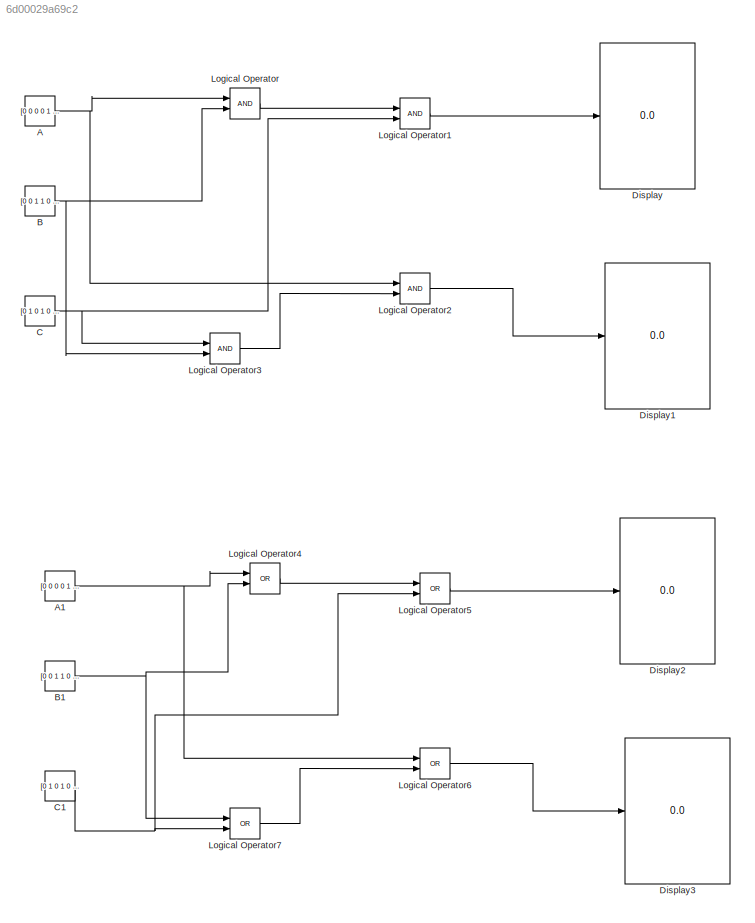
MODEL slx_6d00029a69c2
KIND model
CONFIG AbsTol = auto
CONFIG EnableMultiTasking = off
CONFIG FixedStep = auto
CONFIG MaxStep = auto
CONFIG MinStep = auto
CONFIG RelTol = 1e-3
CONFIG SampleTimeConstraint = Unconstrained
CONFIG SolverName = VariableStepAuto
CONFIG StartTime = 0.0
CONFIG StopTime = 10.0
BLOCK [Constant] A
  Value = [0 0 0 0 1 1 1 1]
BLOCK [Constant] A1
  Value = [0 0 0 0 1 1 1 1]
BLOCK [Constant] B
  Value = [0 0 1 1 0 0 1 1]
BLOCK [Constant] B1
  Value = [0 0 1 1 0 0 1 1]
BLOCK [Constant] C
  Value = [0 1 0 1 0 1 0 1]
BLOCK [Constant] C1
  Value = [0 1 0 1 0 1 0 1]
BLOCK [Display] Display
  Decimation = 1
BLOCK [Display] Display1
  Decimation = 1
BLOCK [Display] Display2
  Decimation = 1
BLOCK [Display] Display3
  Decimation = 1
BLOCK [Logic] Logical Operator
  AllPortsSameDT = off
  OutDataTypeStr = boolean
BLOCK [Logic] Logical Operator1
  AllPortsSameDT = off
  OutDataTypeStr = boolean
BLOCK [Logic] Logical Operator2
  AllPortsSameDT = off
  OutDataTypeStr = boolean
BLOCK [Logic] Logical Operator3
  AllPortsSameDT = off
  OutDataTypeStr = boolean
BLOCK [Logic] Logical Operator4
  AllPortsSameDT = off
  Operator = OR
  OutDataTypeStr = boolean
BLOCK [Logic] Logical Operator5
  AllPortsSameDT = off
  Operator = OR
  OutDataTypeStr = boolean
BLOCK [Logic] Logical Operator6
  AllPortsSameDT = off
  Operator = OR
  OutDataTypeStr = boolean
BLOCK [Logic] Logical Operator7
  AllPortsSameDT = off
  Operator = OR
  OutDataTypeStr = boolean
NET A1:1 -> Logical Operator4:1, Logical Operator6:1
NET A:1 -> Logical Operator2:1, Logical Operator:1
NET B1:1 -> Logical Operator4:2, Logical Operator7:1
NET B:1 -> Logical Operator3:2, Logical Operator:2
NET C1:1 -> Logical Operator5:2, Logical Operator7:2
NET C:1 -> Logical Operator1:2, Logical Operator3:1
LINE Logical Operator1:1 -> Display:1
LINE Logical Operator2:1 -> Display1:1
LINE Logical Operator3:1 -> Logical Operator2:2
LINE Logical Operator4:1 -> Logical Operator5:1
LINE Logical Operator5:1 -> Display2:1
LINE Logical Operator6:1 -> Display3:1
LINE Logical Operator7:1 -> Logical Operator6:2
LINE Logical Operator:1 -> Logical Operator1:1
note: NET lines group one-source signal fan-out (src -> all destinations, sorted); 1:1 wires keep LINE
